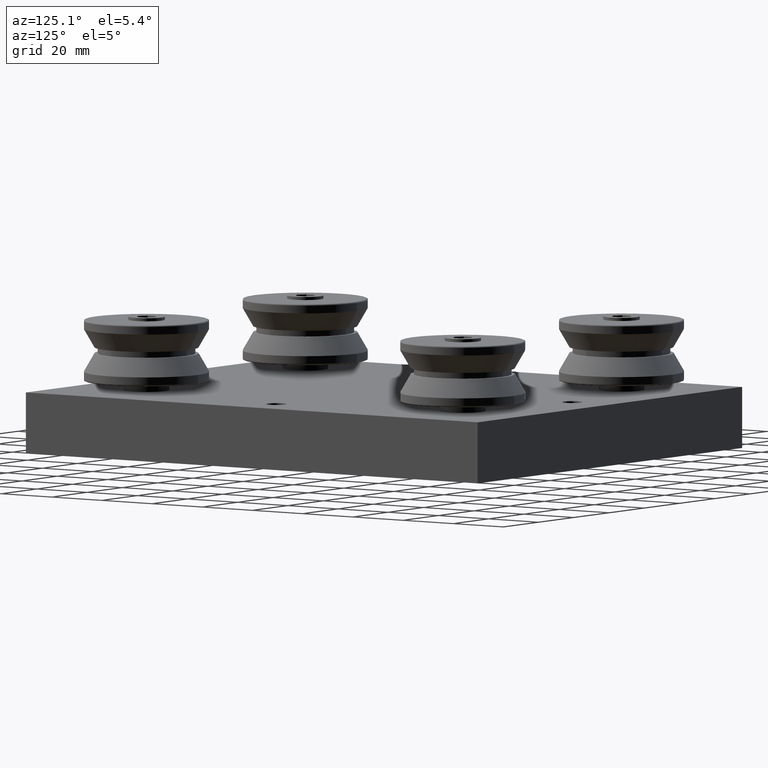
[diagram: clean part render]
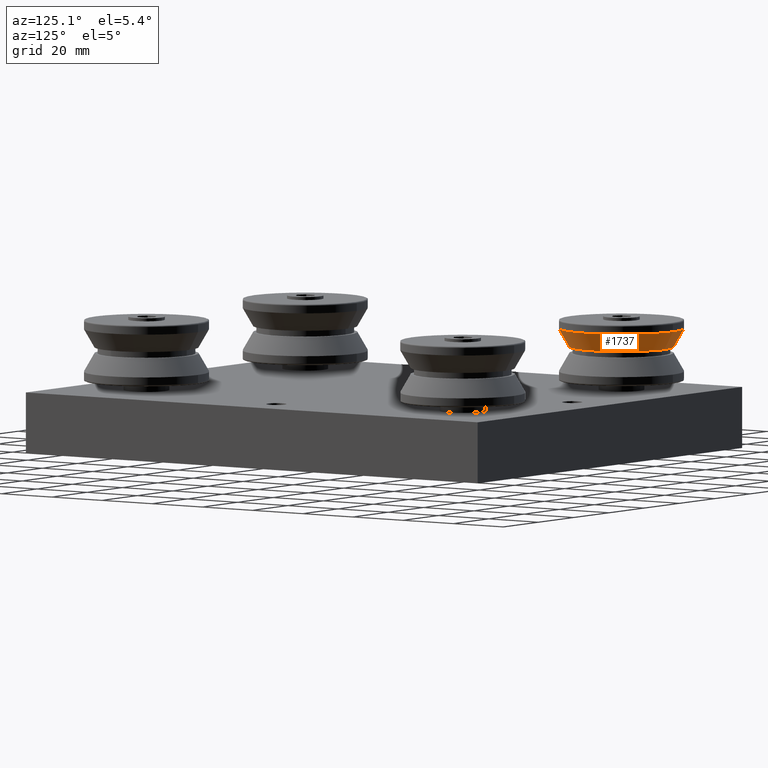
[diagram: same view with one face highlighted and labeled with its STEP entity id]
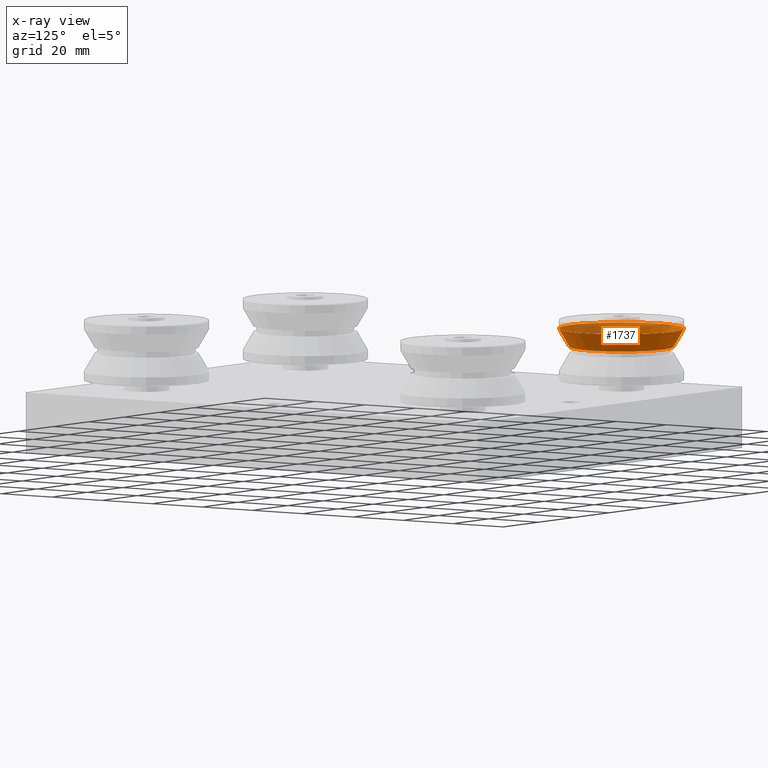
[diagram: x-ray of the same camera — body ghosted, the highlighted face saturated]
A machine part, auxiliary view. The second image highlights one B-rep face of the part: STEP entity #1737.
The next image is the same camera in x-ray: the body ghosted, the highlighted face saturated — about 32% of this face is hidden behind the body in this view.
In plain terms, the highlighted conical surface has half-angle 30 deg.
Its self-contained STEP definition (entity closure, byte-faithful):
#77=CONICAL_SURFACE('',#2078,17.0303448853971,0.523598775598299);
#317=FACE_OUTER_BOUND('',#447,.T.);
#447=EDGE_LOOP('',(#1405,#1406,#1407,#1408));
#577=LINE('',#2950,#706);
#706=VECTOR('',#2432,17.0303448853971);
#821=CIRCLE('',#2077,17.0303448853971);
#822=CIRCLE('',#2079,20.5);
#929=VERTEX_POINT('',#2945);
#930=VERTEX_POINT('',#2948);
#1104=EDGE_CURVE('',#929,#929,#821,.T.);
#1105=EDGE_CURVE('',#930,#930,#822,.T.);
#1106=EDGE_CURVE('',#930,#929,#577,.T.);
#1405=ORIENTED_EDGE('',*,*,#1105,.F.);
#1406=ORIENTED_EDGE('',*,*,#1106,.T.);
#1407=ORIENTED_EDGE('',*,*,#1104,.T.);
#1408=ORIENTED_EDGE('',*,*,#1106,.F.);
#1737=ADVANCED_FACE('',(#317),#77,.T.);
#2077=AXIS2_PLACEMENT_3D('',#2946,#2426,#2427);
#2078=AXIS2_PLACEMENT_3D('',#2947,#2428,#2429);
#2079=AXIS2_PLACEMENT_3D('',#2949,#2430,#2431);
#2426=DIRECTION('center_axis',(0.,0.,-1.));
#2427=DIRECTION('ref_axis',(-1.,0.,0.));
#2428=DIRECTION('center_axis',(0.,0.,-1.));
#2429=DIRECTION('ref_axis',(-1.,0.,0.));
#2430=DIRECTION('center_axis',(0.,0.,-1.));
#2431=DIRECTION('ref_axis',(-1.,0.,0.));
#2432=DIRECTION('',(-0.5,6.12323399573677E-17,0.866025403784439));
#2945=CARTESIAN_POINT('',(17.0303448853971,-2.08561573522771E-15,10.));
#2946=CARTESIAN_POINT('Origin',(0.,0.,10.));
#2947=CARTESIAN_POINT('Origin',(0.,0.,10.));
#2948=CARTESIAN_POINT('',(20.5,-2.51052593825207E-15,3.99038105676658));
#2949=CARTESIAN_POINT('Origin',(0.,0.,3.99038105676658));
#2950=CARTESIAN_POINT('',(17.0303448853971,-2.08561573522771E-15,10.));